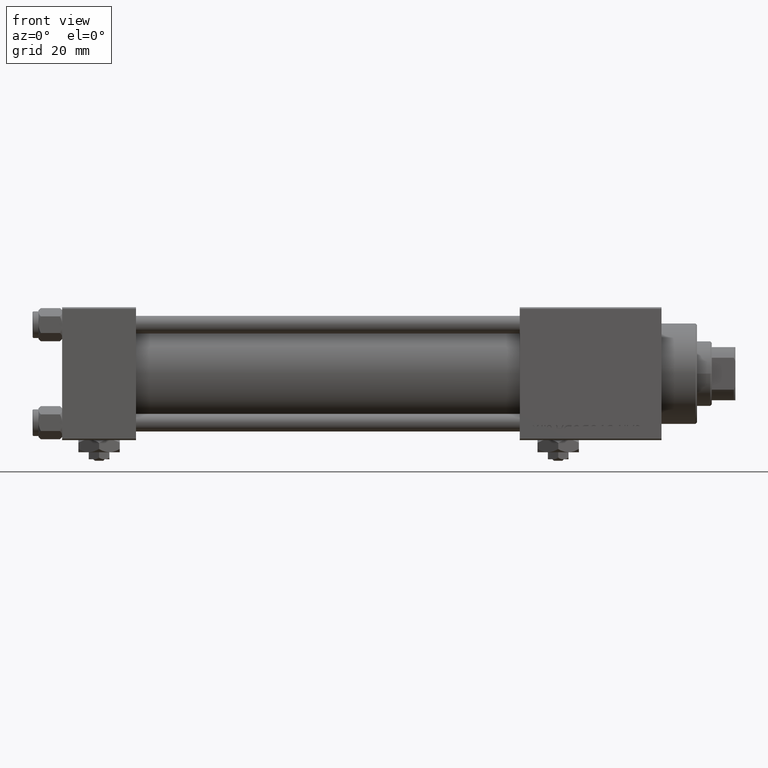
[diagram: clean part render]
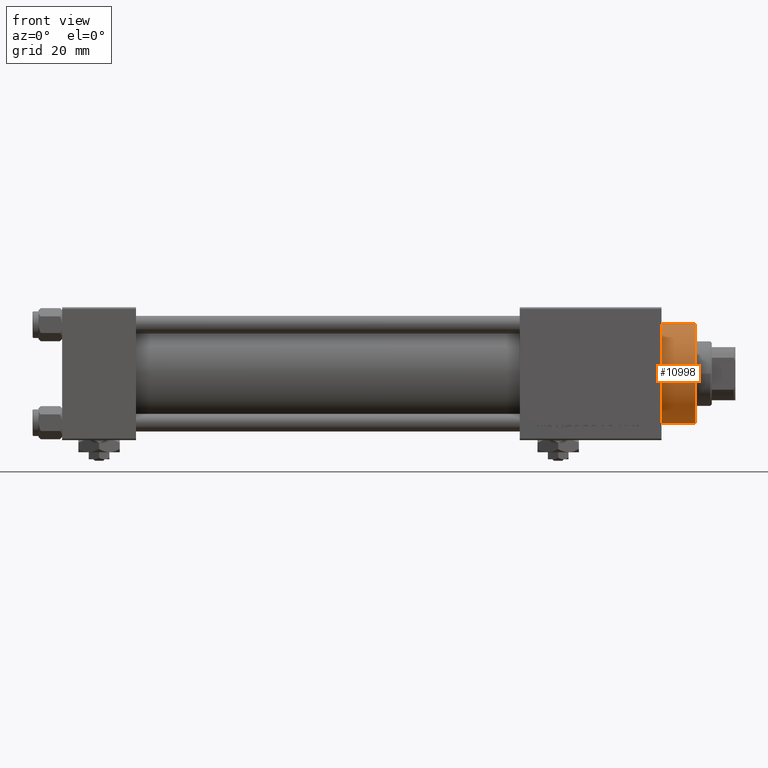
[diagram: same view with one face highlighted and labeled with its STEP entity id]
A machine part, front view. The second image highlights one B-rep face of the part: STEP entity #10998.
In plain terms, the highlighted cylindrical surface (partial cylindrical patch) has radius 17 mm, axis along (-1, -0, -0).
Its self-contained STEP definition (entity closure, byte-faithful):
#1543 = DIRECTION ( 'NONE',  ( -0.000000000000000000, -0.000000000000000000, -1.000000000000000000 ) ) ;
#1624 = EDGE_CURVE ( 'NONE', #34085, #4690, #26061, .T. ) ;
#4633 = DIRECTION ( 'NONE',  ( -0.000000000000000000, -0.000000000000000000, -1.000000000000000000 ) ) ;
#4690 = VERTEX_POINT ( 'NONE', #23580 ) ;
#6228 = CARTESIAN_POINT ( 'NONE',  ( 0.000000000000000000, 0.000000000000000000, 28.69999999999999929 ) ) ;
#8973 = DIRECTION ( 'NONE',  ( -1.000000000000000000, 0.000000000000000000, 0.000000000000000000 ) ) ;
#9194 = VECTOR ( 'NONE', #1543, 1000.000000000000000 ) ;
#9417 = CIRCLE ( 'NONE', #10272, 17.00000000000000000 ) ;
#9630 = AXIS2_PLACEMENT_3D ( 'NONE', #32575, #19014, #10622 ) ;
#9757 = DIRECTION ( 'NONE',  ( 1.000000000000000000, 0.000000000000000000, 0.000000000000000000 ) ) ;
#10272 = AXIS2_PLACEMENT_3D ( 'NONE', #6228, #38461, #9757 ) ;
#10622 = DIRECTION ( 'NONE',  ( 1.000000000000000000, 0.000000000000000000, 0.000000000000000000 ) ) ;
#10998 = ADVANCED_FACE ( 'NONE', ( #19911 ), #32382, .T. ) ;
#11157 = ORIENTED_EDGE ( 'NONE', *, *, #15912, .F. ) ;
#12878 = VERTEX_POINT ( 'NONE', #46944 ) ;
#15912 = EDGE_CURVE ( 'NONE', #34085, #12878, #18583, .T. ) ;
#17224 = EDGE_LOOP ( 'NONE', ( #11157, #51684, #36283, #42065 ) ) ;
#18583 = LINE ( 'NONE', #22128, #9194 ) ;
#19014 = DIRECTION ( 'NONE',  ( 0.000000000000000000, 0.000000000000000000, -1.000000000000000000 ) ) ;
#19036 = VERTEX_POINT ( 'NONE', #37159 ) ;
#19911 = FACE_OUTER_BOUND ( 'NONE', #17224, .T. ) ;
#21225 = LINE ( 'NONE', #29348, #30108 ) ;
#22128 = CARTESIAN_POINT ( 'NONE',  ( 17.00000000000000000, 2.081899558550500280E-15, 40.70000000000000284 ) ) ;
#23580 = CARTESIAN_POINT ( 'NONE',  ( -17.00000000000000000, 0.000000000000000000, 40.19999999999999574 ) ) ;
#23750 = EDGE_CURVE ( 'NONE', #4690, #19036, #21225, .T. ) ;
#26061 = CIRCLE ( 'NONE', #9630, 17.00000000000000000 ) ;
#27155 = EDGE_CURVE ( 'NONE', #19036, #12878, #9417, .T. ) ;
#28306 = CARTESIAN_POINT ( 'NONE',  ( 0.000000000000000000, 0.000000000000000000, 40.70000000000000284 ) ) ;
#29348 = CARTESIAN_POINT ( 'NONE',  ( -17.00000000000000000, 0.000000000000000000, 40.70000000000000284 ) ) ;
#30108 = VECTOR ( 'NONE', #37476, 1000.000000000000000 ) ;
#32382 = CYLINDRICAL_SURFACE ( 'NONE', #52172, 17.00000000000000000 ) ;
#32575 = CARTESIAN_POINT ( 'NONE',  ( 0.000000000000000000, 0.000000000000000000, 40.19999999999999574 ) ) ;
#34085 = VERTEX_POINT ( 'NONE', #39928 ) ;
#36283 = ORIENTED_EDGE ( 'NONE', *, *, #23750, .T. ) ;
#37159 = CARTESIAN_POINT ( 'NONE',  ( -17.00000000000000000, 0.000000000000000000, 28.69999999999999929 ) ) ;
#37476 = DIRECTION ( 'NONE',  ( -0.000000000000000000, -0.000000000000000000, -1.000000000000000000 ) ) ;
#38461 = DIRECTION ( 'NONE',  ( 0.000000000000000000, 0.000000000000000000, 1.000000000000000000 ) ) ;
#39928 = CARTESIAN_POINT ( 'NONE',  ( 17.00000000000000000, 2.081899558550500280E-15, 40.19999999999999574 ) ) ;
#42065 = ORIENTED_EDGE ( 'NONE', *, *, #27155, .T. ) ;
#46944 = CARTESIAN_POINT ( 'NONE',  ( 17.00000000000000000, 2.081899558550500280E-15, 28.69999999999999929 ) ) ;
#51684 = ORIENTED_EDGE ( 'NONE', *, *, #1624, .T. ) ;
#52172 = AXIS2_PLACEMENT_3D ( 'NONE', #28306, #4633, #8973 ) ;